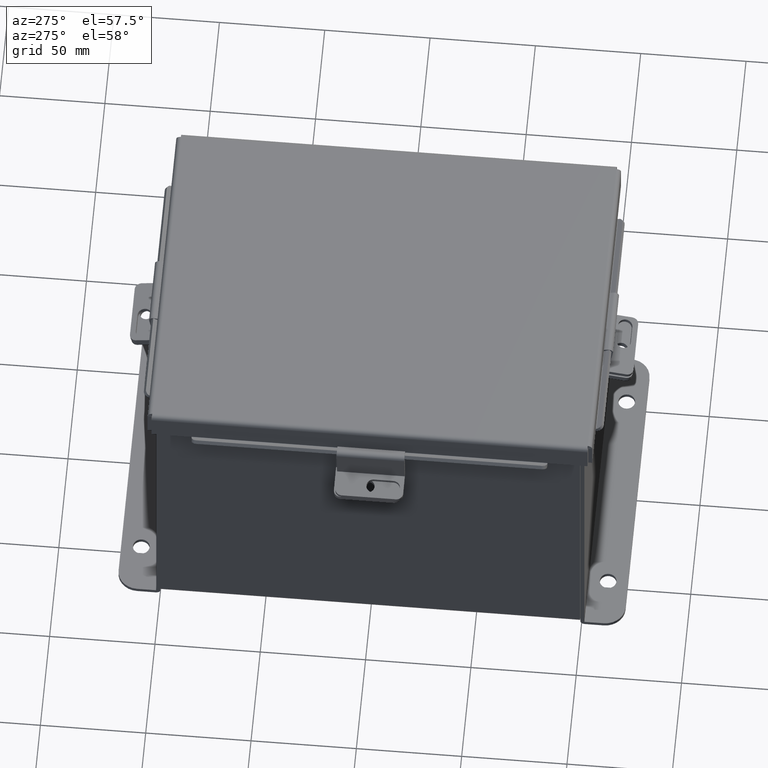
[diagram: clean part render]
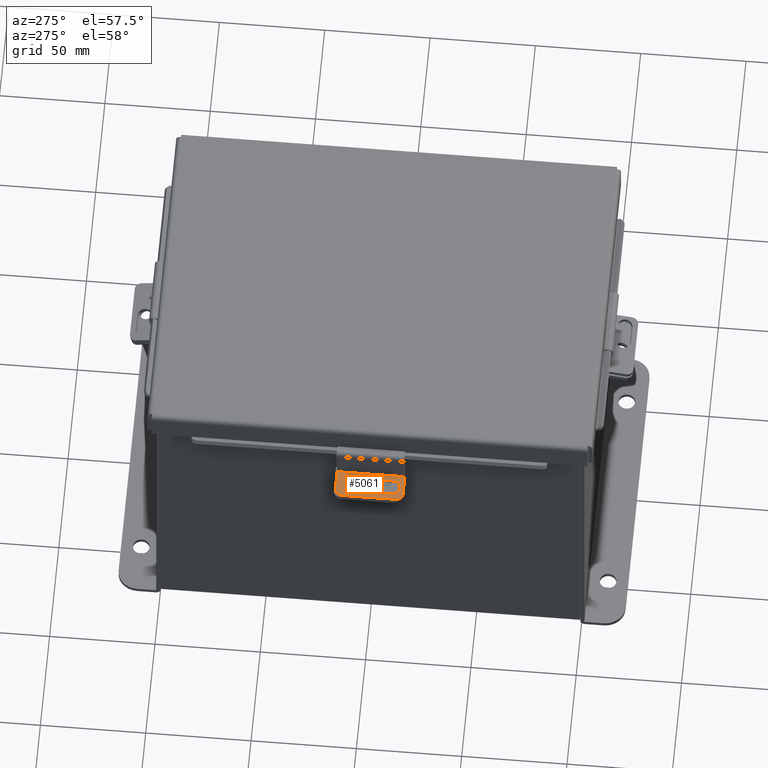
[diagram: same view with one face highlighted and labeled with its STEP entity id]
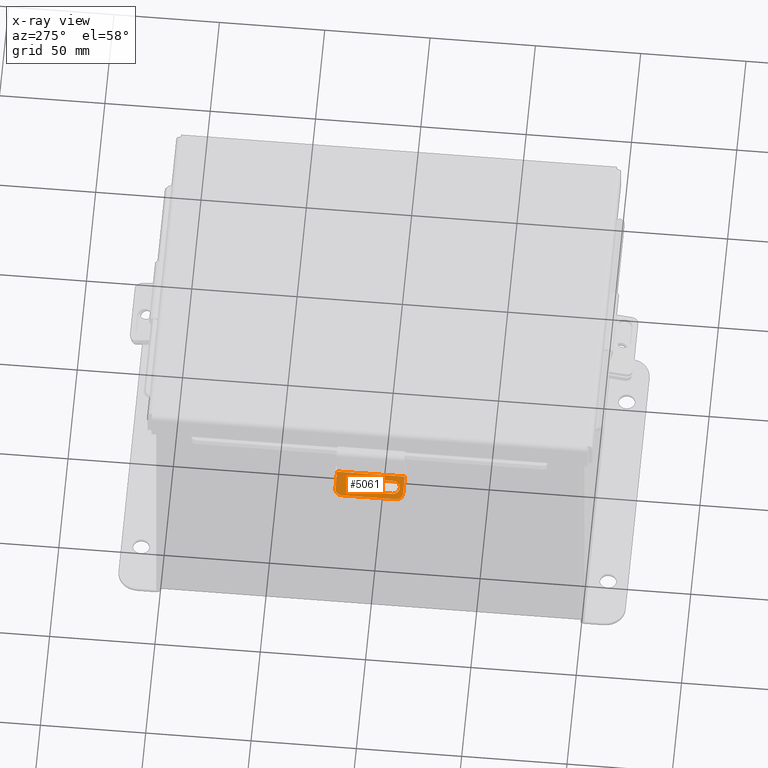
[diagram: x-ray of the same camera — body ghosted, the highlighted face saturated]
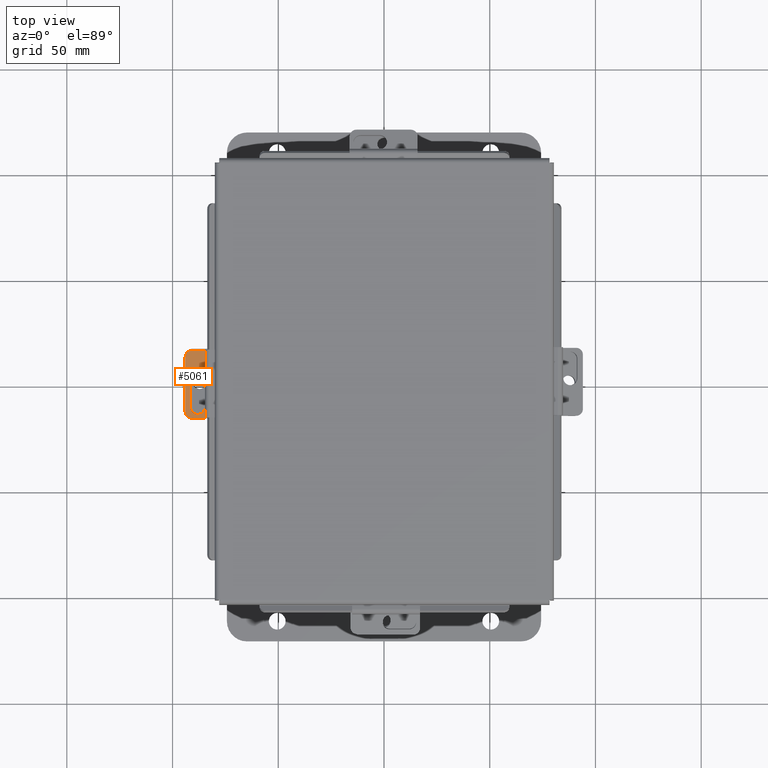
[diagram: same view with one face highlighted and labeled with its STEP entity id]
A machine part, auxiliary view. The second image highlights one B-rep face of the part: STEP entity #5061.
The next image is the same camera in x-ray: the body ghosted, the highlighted face saturated — about 0% of this face is hidden behind the body in this view.
A second angle (top view) of the same face is appended — the face is thin or edge-on in the first view.
In plain terms, the highlighted planar face has unit normal (-0.1564, -0, 0.9877).
Its self-contained STEP definition (entity closure, byte-faithful):
#192 = CARTESIAN_POINT ( 'NONE',  ( 0.06892698034544840500, -0.3435000000000011900, 0.3775000000000000600 ) ) ;
#281 = EDGE_LOOP ( 'NONE', ( #1415, #3196, #8903, #5119, #5273, #5420 ) ) ;
#548 = DIRECTION ( 'NONE',  ( 1.000000000000000000, 0.0000000000000000000, 0.0000000000000000000 ) ) ;
#745 = CIRCLE ( 'NONE', #4264, 0.1250000000000000300 ) ;
#855 = CARTESIAN_POINT ( 'NONE',  ( 0.4289269803454484100, -0.3435000000000011900, 0.3775000000000000600 ) ) ;
#984 = CARTESIAN_POINT ( 'NONE',  ( 0.4289269803454484100, -0.3435000000000006900, 0.2450000000000000500 ) ) ;
#1084 = VERTEX_POINT ( 'NONE', #4469 ) ;
#1336 = LINE ( 'NONE', #8257, #2408 ) ;
#1361 = CARTESIAN_POINT ( 'NONE',  ( 0.06892698034544837700, -0.3435000000000006900, 0.2450000000000000500 ) ) ;
#1415 = ORIENTED_EDGE ( 'NONE', *, *, #2908, .F. ) ;
#1433 = VERTEX_POINT ( 'NONE', #6369 ) ;
#1454 = LINE ( 'NONE', #8571, #4845 ) ;
#1463 = CARTESIAN_POINT ( 'NONE',  ( 0.06892698034544837700, -0.3435000000000002500, 0.1125000000000000400 ) ) ;
#1617 = DIRECTION ( 'NONE',  ( 1.000000000000000000, 0.0000000000000000000, 0.0000000000000000000 ) ) ;
#1733 = DIRECTION ( 'NONE',  ( 0.0000000000000000000, -3.608101123707516300E-015, 1.000000000000000000 ) ) ;
#1787 = VERTEX_POINT ( 'NONE', #3157 ) ;
#1854 = CIRCLE ( 'NONE', #8881, 0.1250000000000000300 ) ;
#1914 = ORIENTED_EDGE ( 'NONE', *, *, #3093, .F. ) ;
#2124 = EDGE_CURVE ( 'NONE', #8345, #1084, #745, .T. ) ;
#2132 = DIRECTION ( 'NONE',  ( 0.0000000000000000000, -3.608101123707516300E-015, 1.000000000000000000 ) ) ;
#2408 = VECTOR ( 'NONE', #6066, 39.37007874015748100 ) ;
#2420 = VERTEX_POINT ( 'NONE', #2564 ) ;
#2528 = DIRECTION ( 'NONE',  ( -0.0000000000000000000, 1.000000000000000000, 3.549698536466037200E-015 ) ) ;
#2564 = CARTESIAN_POINT ( 'NONE',  ( 0.6325000000000000600, -0.3435000000000011400, 0.3560000000000002600 ) ) ;
#2609 = CARTESIAN_POINT ( 'NONE',  ( -0.6325000000000000600, -0.3435000000000015300, 0.4810000000000002600 ) ) ;
#2908 = EDGE_CURVE ( 'NONE', #8345, #4215, #1336, .T. ) ;
#2990 = CIRCLE ( 'NONE', #7013, 0.1325000000000000300 ) ;
#3002 = VECTOR ( 'NONE', #7961, 39.37007874015748100 ) ;
#3093 = EDGE_CURVE ( 'NONE', #3643, #4853, #2990, .T. ) ;
#3157 = CARTESIAN_POINT ( 'NONE',  ( 0.5075000000000001700, -0.3435000000000015300, 0.4810000000000002600 ) ) ;
#3196 = ORIENTED_EDGE ( 'NONE', *, *, #2124, .T. ) ;
#3370 = PLANE ( 'NONE',  #7327 ) ;
#3643 = VERTEX_POINT ( 'NONE', #4928 ) ;
#3694 = CARTESIAN_POINT ( 'NONE',  ( -0.5075000000000000600, -0.3435000000000011400, 0.3560000000000002600 ) ) ;
#3914 = EDGE_CURVE ( 'NONE', #1787, #1084, #1454, .T. ) ;
#4029 = EDGE_CURVE ( 'NONE', #1433, #3643, #7102, .T. ) ;
#4099 = DIRECTION ( 'NONE',  ( 0.0000000000000000000, -3.549698536466037200E-015, 1.000000000000000000 ) ) ;
#4215 = VERTEX_POINT ( 'NONE', #9263 ) ;
#4264 = AXIS2_PLACEMENT_3D ( 'NONE', #3694, #8829, #4425 ) ;
#4299 = CIRCLE ( 'NONE', #8766, 0.1325000000000000300 ) ;
#4425 = DIRECTION ( 'NONE',  ( 0.0000000000000000000, -3.278217592397115100E-015, 1.000000000000000000 ) ) ;
#4469 = CARTESIAN_POINT ( 'NONE',  ( -0.5075000000000000600, -0.3435000000000015300, 0.4810000000000002600 ) ) ;
#4845 = VECTOR ( 'NONE', #4917, 39.37007874015748100 ) ;
#4853 = VERTEX_POINT ( 'NONE', #192 ) ;
#4887 = EDGE_CURVE ( 'NONE', #5598, #1433, #4299, .T. ) ;
#4902 = CARTESIAN_POINT ( 'NONE',  ( 0.6325000000000000600, -0.3434999999999999200, 0.008999999999999957700 ) ) ;
#4904 = LINE ( 'NONE', #6012, #8795 ) ;
#4917 = DIRECTION ( 'NONE',  ( -1.000000000000000000, -0.0000000000000000000, -0.0000000000000000000 ) ) ;
#4928 = CARTESIAN_POINT ( 'NONE',  ( 0.06892698034544837700, -0.3435000000000002500, 0.1125000000000000400 ) ) ;
#5061 = ADVANCED_FACE ( 'NONE', ( #8475, #5481 ), #3370, .T. ) ;
#5119 = ORIENTED_EDGE ( 'NONE', *, *, #5759, .T. ) ;
#5273 = ORIENTED_EDGE ( 'NONE', *, *, #9525, .F. ) ;
#5420 = ORIENTED_EDGE ( 'NONE', *, *, #9039, .F. ) ;
#5481 = FACE_OUTER_BOUND ( 'NONE', #281, .T. ) ;
#5598 = VERTEX_POINT ( 'NONE', #855 ) ;
#5743 = CARTESIAN_POINT ( 'NONE',  ( 0.06892698034544837700, -0.3435000000000011900, 0.3775000000000000600 ) ) ;
#5759 = EDGE_CURVE ( 'NONE', #1787, #2420, #1854, .T. ) ;
#5836 = ORIENTED_EDGE ( 'NONE', *, *, #4887, .F. ) ;
#5844 = VECTOR ( 'NONE', #6584, 39.37007874015748100 ) ;
#6012 = CARTESIAN_POINT ( 'NONE',  ( -0.6325000000000000600, -0.3434999999999998100, 0.008999999999999959400 ) ) ;
#6066 = DIRECTION ( 'NONE',  ( -0.0000000000000000000, 3.549698536466037200E-015, -1.000000000000000000 ) ) ;
#6096 = ORIENTED_EDGE ( 'NONE', *, *, #6774, .F. ) ;
#6128 = DIRECTION ( 'NONE',  ( 0.0000000000000000000, 1.000000000000000000, 3.549698536466037200E-015 ) ) ;
#6157 = VERTEX_POINT ( 'NONE', #4902 ) ;
#6247 = DIRECTION ( 'NONE',  ( -0.0000000000000000000, 1.000000000000000000, 3.549698536466037200E-015 ) ) ;
#6369 = CARTESIAN_POINT ( 'NONE',  ( 0.4289269803454484100, -0.3435000000000002500, 0.1125000000000000600 ) ) ;
#6485 = DIRECTION ( 'NONE',  ( 0.0000000000000000000, 1.000000000000000000, 3.549698536466037200E-015 ) ) ;
#6491 = CARTESIAN_POINT ( 'NONE',  ( -0.6325000000000000600, -0.3435000000000011400, 0.3560000000000002600 ) ) ;
#6584 = DIRECTION ( 'NONE',  ( -1.000000000000000000, -0.0000000000000000000, -4.742791655667123600E-017 ) ) ;
#6774 = EDGE_CURVE ( 'NONE', #4853, #5598, #8558, .T. ) ;
#6900 = CARTESIAN_POINT ( 'NONE',  ( 0.5075000000000001700, -0.3435000000000011400, 0.3560000000000002600 ) ) ;
#7013 = AXIS2_PLACEMENT_3D ( 'NONE', #1361, #6485, #2132 ) ;
#7051 = ORIENTED_EDGE ( 'NONE', *, *, #4029, .F. ) ;
#7102 = LINE ( 'NONE', #1463, #5844 ) ;
#7226 = CARTESIAN_POINT ( 'NONE',  ( 0.6325000000000000600, -0.3435000000000015300, 0.4810000000000002600 ) ) ;
#7327 = AXIS2_PLACEMENT_3D ( 'NONE', #2609, #6247, #4099 ) ;
#7655 = DIRECTION ( 'NONE',  ( 0.0000000000000000000, -3.278217592397115100E-015, 1.000000000000000000 ) ) ;
#7731 = EDGE_LOOP ( 'NONE', ( #1914, #7051, #5836, #6096 ) ) ;
#7843 = VECTOR ( 'NONE', #548, 39.37007874015748100 ) ;
#7961 = DIRECTION ( 'NONE',  ( -0.0000000000000000000, -3.549698536466037200E-015, 1.000000000000000000 ) ) ;
#8257 = CARTESIAN_POINT ( 'NONE',  ( -0.6325000000000000600, -0.3434999999999998100, 4.308072624094997700E-018 ) ) ;
#8345 = VERTEX_POINT ( 'NONE', #6491 ) ;
#8475 = FACE_BOUND ( 'NONE', #7731, .T. ) ;
#8558 = LINE ( 'NONE', #5743, #7843 ) ;
#8571 = CARTESIAN_POINT ( 'NONE',  ( -0.6325000000000000600, -0.3435000000000015300, 0.4810000000000002600 ) ) ;
#8766 = AXIS2_PLACEMENT_3D ( 'NONE', #984, #6128, #1733 ) ;
#8795 = VECTOR ( 'NONE', #1617, 39.37007874015748100 ) ;
#8829 = DIRECTION ( 'NONE',  ( -0.0000000000000000000, 1.000000000000000000, 3.549698536466037200E-015 ) ) ;
#8860 = LINE ( 'NONE', #7226, #3002 ) ;
#8881 = AXIS2_PLACEMENT_3D ( 'NONE', #6900, #2528, #7655 ) ;
#8903 = ORIENTED_EDGE ( 'NONE', *, *, #3914, .F. ) ;
#9039 = EDGE_CURVE ( 'NONE', #4215, #6157, #4904, .T. ) ;
#9263 = CARTESIAN_POINT ( 'NONE',  ( -0.6325000000000000600, -0.3434999999999999200, 0.008999999999999957700 ) ) ;
#9525 = EDGE_CURVE ( 'NONE', #6157, #2420, #8860, .T. ) ;